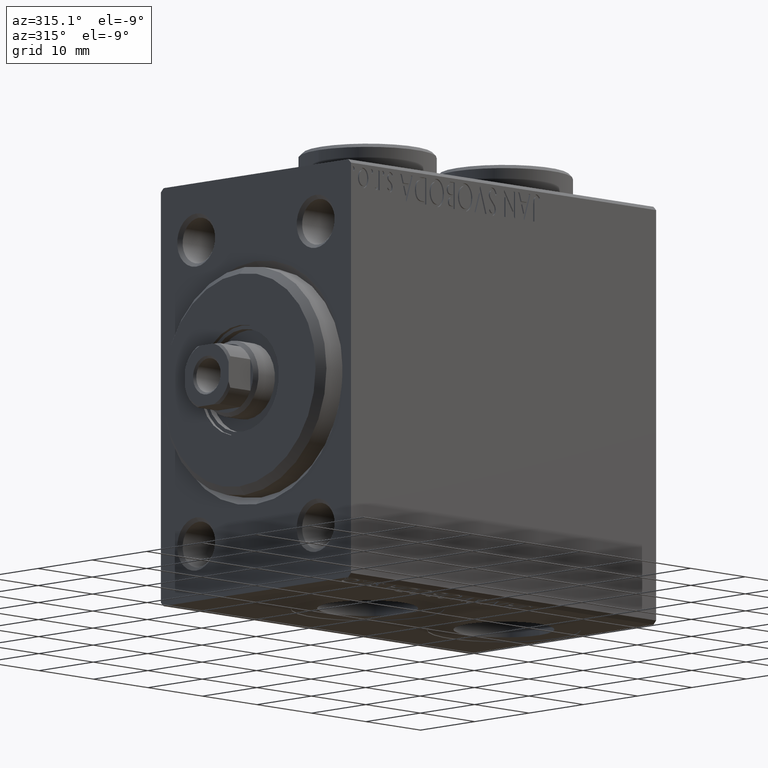
[diagram: clean part render]
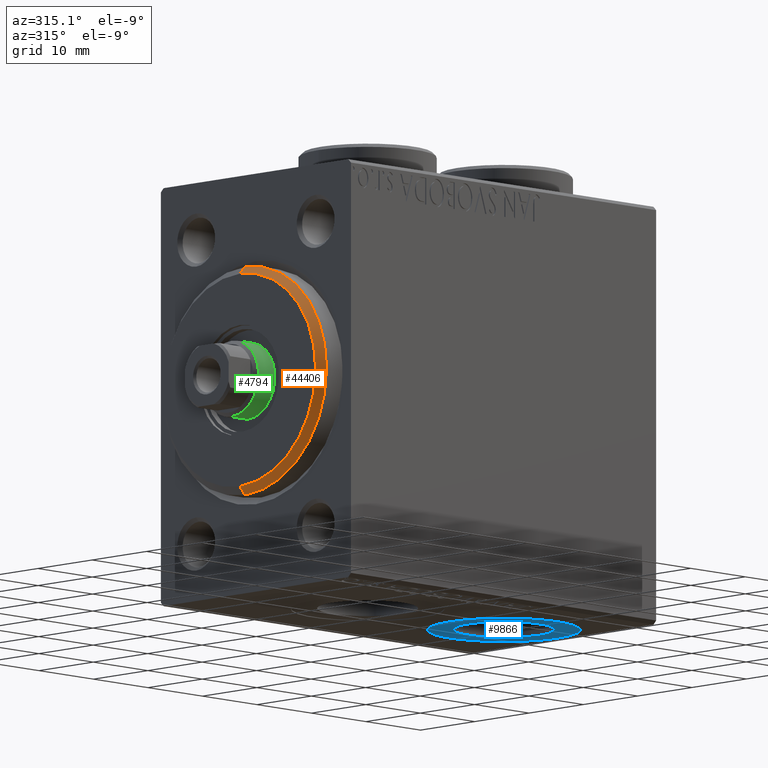
[diagram: same view with three faces highlighted in distinct colors, each labeled with its STEP entity id]
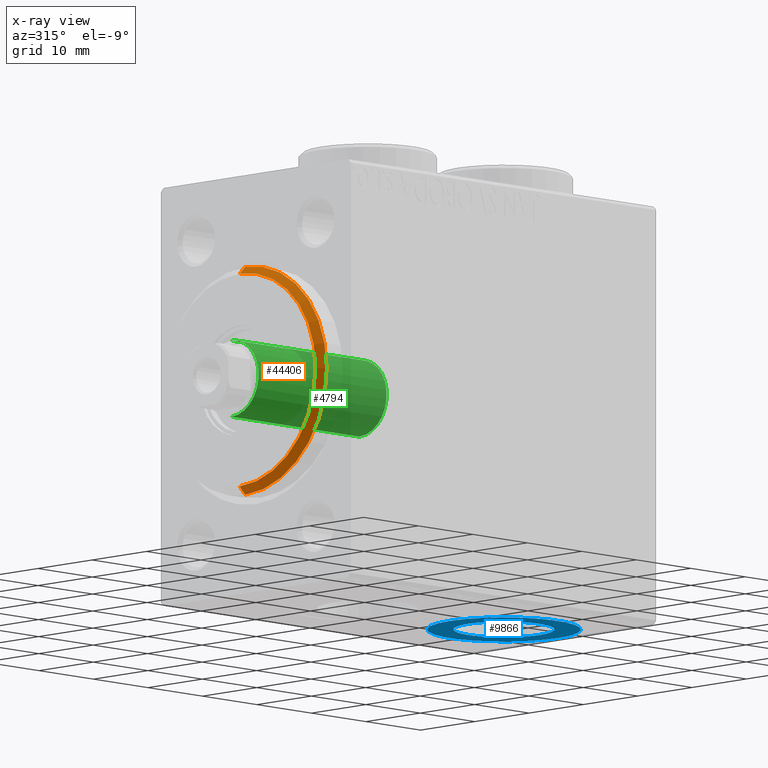
[diagram: x-ray of the same camera — body ghosted, the three highlighted faces saturated]
A machine part, auxiliary view with three faces highlighted in distinct colors.
The next image is the same camera in x-ray (body ghosted, the three faces saturated) — at least one of them is partly hidden behind the body in this view.
Their STEP definitions:

[orange] entity #44406 — the highlighted conical surface has half-angle 45 deg.
#35 = CARTESIAN_POINT ( 'NONE',  ( 3.000000000000000000, 0.000000000000000000, 13.99999999999999645 ) ) ;
#1127 = VERTEX_POINT ( 'NONE', #39941 ) ;
#1784 = CARTESIAN_POINT ( 'NONE',  ( 1.999999999999995781, 0.000000000000000000, 15.00000000000000000 ) ) ;
#2552 = LINE ( 'NONE', #44895, #21576 ) ;
#6516 = DIRECTION ( 'NONE',  ( -1.000000000000000000, 0.000000000000000000, 0.000000000000000000 ) ) ;
#6642 = DIRECTION ( 'NONE',  ( -0.7071067811865482389, 8.659560562354926695E-17, -0.7071067811865469066 ) ) ;
#12354 = CARTESIAN_POINT ( 'NONE',  ( 1.999999999999995781, 1.836970198721029589E-15, -15.00000000000000000 ) ) ;
#12793 = DIRECTION ( 'NONE',  ( 0.000000000000000000, 0.000000000000000000, 1.000000000000000000 ) ) ;
#13194 = VECTOR ( 'NONE', #6642, 999.9999999999998863 ) ;
#13292 = DIRECTION ( 'NONE',  ( 1.000000000000000000, -0.000000000000000000, 0.000000000000000000 ) ) ;
#13510 = EDGE_CURVE ( 'NONE', #1127, #41919, #43146, .T. ) ;
#14566 = ORIENTED_EDGE ( 'NONE', *, *, #13510, .F. ) ;
#16235 = CARTESIAN_POINT ( 'NONE',  ( 3.000000000000000000, 0.000000000000000000, 0.000000000000000000 ) ) ;
#18321 = ORIENTED_EDGE ( 'NONE', *, *, #20078, .T. ) ;
#20078 = EDGE_CURVE ( 'NONE', #1127, #24040, #31932, .T. ) ;
#20143 = FACE_OUTER_BOUND ( 'NONE', #24908, .T. ) ;
#21045 = VERTEX_POINT ( 'NONE', #1784 ) ;
#21576 = VECTOR ( 'NONE', #30165, 999.9999999999998863 ) ;
#23012 = EDGE_CURVE ( 'NONE', #21045, #24040, #38209, .T. ) ;
#23651 = DIRECTION ( 'NONE',  ( 0.000000000000000000, 0.000000000000000000, -1.000000000000000000 ) ) ;
#24040 = VERTEX_POINT ( 'NONE', #12354 ) ;
#24358 = ORIENTED_EDGE ( 'NONE', *, *, #37574, .F. ) ;
#24908 = EDGE_LOOP ( 'NONE', ( #14566, #18321, #29101, #24358 ) ) ;
#26127 = CONICAL_SURFACE ( 'NONE', #28316, 13.99999999999999645, 0.7853981633974473908 ) ;
#28316 = AXIS2_PLACEMENT_3D ( 'NONE', #16235, #30285, #12793 ) ;
#29101 = ORIENTED_EDGE ( 'NONE', *, *, #23012, .F. ) ;
#29902 = AXIS2_PLACEMENT_3D ( 'NONE', #41134, #13292, #23651 ) ;
#30165 = DIRECTION ( 'NONE',  ( -0.7071067811865482389, 0.000000000000000000, 0.7071067811865469066 ) ) ;
#30285 = DIRECTION ( 'NONE',  ( -1.000000000000000000, 0.000000000000000000, 0.000000000000000000 ) ) ;
#31932 = LINE ( 'NONE', #38618, #13194 ) ;
#37574 = EDGE_CURVE ( 'NONE', #41919, #21045, #2552, .T. ) ;
#38209 = CIRCLE ( 'NONE', #41169, 15.00000000000000000 ) ;
#38618 = CARTESIAN_POINT ( 'NONE',  ( 3.000000000000000000, 1.714505518806294244E-15, -13.99999999999999645 ) ) ;
#39941 = CARTESIAN_POINT ( 'NONE',  ( 3.000000000000000000, 1.775737858763662015E-15, -13.99999999999999645 ) ) ;
#41134 = CARTESIAN_POINT ( 'NONE',  ( 3.000000000000000000, 0.000000000000000000, 0.000000000000000000 ) ) ;
#41169 = AXIS2_PLACEMENT_3D ( 'NONE', #44738, #6516, #44960 ) ;
#41919 = VERTEX_POINT ( 'NONE', #35 ) ;
#43146 = CIRCLE ( 'NONE', #29902, 13.99999999999999645 ) ;
#44406 = ADVANCED_FACE ( 'NONE', ( #20143 ), #26127, .T. ) ;
#44738 = CARTESIAN_POINT ( 'NONE',  ( 1.999999999999995781, 0.000000000000000000, 0.000000000000000000 ) ) ;
#44895 = CARTESIAN_POINT ( 'NONE',  ( 3.000000000000000000, 0.000000000000000000, 13.99999999999999645 ) ) ;
#44960 = DIRECTION ( 'NONE',  ( 0.000000000000000000, 0.000000000000000000, -1.000000000000000000 ) ) ;

[blue] entity #9866 — the highlighted planar face has unit normal (0, 0, -1).
#205 = CIRCLE ( 'NONE', #32535, 10.00000000000000178 ) ;
#206 = CARTESIAN_POINT ( 'NONE',  ( 35.50000000000000000, -8.514597242955139663E-15, -27.40000000000000924 ) ) ;
#1246 = CARTESIAN_POINT ( 'NONE',  ( 55.50000000000000000, -7.289950443807786604E-15, -27.40000000000000924 ) ) ;
#2366 = VERTEX_POINT ( 'NONE', #1246 ) ;
#2592 = DIRECTION ( 'NONE',  ( 0.000000000000000000, 0.000000000000000000, -1.000000000000000000 ) ) ;
#3305 = CARTESIAN_POINT ( 'NONE',  ( 45.50000000000000000, -8.514597242955139663E-15, -27.40000000000000924 ) ) ;
#4210 = FACE_BOUND ( 'NONE', #44827, .T. ) ;
#4545 = CIRCLE ( 'NONE', #35399, 6.580000000000002736 ) ;
#6966 = DIRECTION ( 'NONE',  ( -1.000000000000000000, 0.000000000000000000, -0.000000000000000000 ) ) ;
#7486 = AXIS2_PLACEMENT_3D ( 'NONE', #31038, #13782, #45083 ) ;
#7794 = VERTEX_POINT ( 'NONE', #206 ) ;
#8158 = VERTEX_POINT ( 'NONE', #38502 ) ;
#9134 = CARTESIAN_POINT ( 'NONE',  ( 45.50000000000000000, -5.788603209277299718E-15, -27.40000000000000924 ) ) ;
#9827 = DIRECTION ( 'NONE',  ( 0.000000000000000000, 0.000000000000000000, -1.000000000000000000 ) ) ;
#9866 = ADVANCED_FACE ( 'NONE', ( #4210, #14557 ), #42180, .T. ) ;
#9952 = DIRECTION ( 'NONE',  ( -1.000000000000000000, 0.000000000000000000, 0.000000000000000000 ) ) ;
#13068 = ORIENTED_EDGE ( 'NONE', *, *, #34008, .T. ) ;
#13287 = CIRCLE ( 'NONE', #7486, 10.00000000000000178 ) ;
#13782 = DIRECTION ( 'NONE',  ( 0.000000000000000000, 0.000000000000000000, -1.000000000000000000 ) ) ;
#14390 = DIRECTION ( 'NONE',  ( 0.000000000000000000, 0.000000000000000000, -1.000000000000000000 ) ) ;
#14557 = FACE_OUTER_BOUND ( 'NONE', #35891, .T. ) ;
#17159 = CARTESIAN_POINT ( 'NONE',  ( 45.50000000000000000, -8.514597242955139663E-15, -27.40000000000000924 ) ) ;
#17332 = DIRECTION ( 'NONE',  ( 0.000000000000000000, 0.000000000000000000, -1.000000000000000000 ) ) ;
#20890 = CIRCLE ( 'NONE', #30462, 6.580000000000002736 ) ;
#23935 = ORIENTED_EDGE ( 'NONE', *, *, #30050, .F. ) ;
#27323 = EDGE_CURVE ( 'NONE', #7794, #2366, #13287, .T. ) ;
#27976 = ORIENTED_EDGE ( 'NONE', *, *, #39458, .F. ) ;
#30050 = EDGE_CURVE ( 'NONE', #38673, #8158, #4545, .T. ) ;
#30082 = DIRECTION ( 'NONE',  ( -1.000000000000000000, 0.000000000000000000, 0.000000000000000000 ) ) ;
#30462 = AXIS2_PLACEMENT_3D ( 'NONE', #9134, #9827, #30082 ) ;
#30894 = CARTESIAN_POINT ( 'NONE',  ( 45.50000000000000000, -5.788603209277299718E-15, -27.40000000000000924 ) ) ;
#31038 = CARTESIAN_POINT ( 'NONE',  ( 45.50000000000000000, -8.514597242955139663E-15, -27.40000000000000924 ) ) ;
#32388 = CARTESIAN_POINT ( 'NONE',  ( 52.07999999999999829, -4.982785615438341465E-15, -27.40000000000000924 ) ) ;
#32535 = AXIS2_PLACEMENT_3D ( 'NONE', #17159, #14390, #35544 ) ;
#34008 = EDGE_CURVE ( 'NONE', #2366, #7794, #205, .T. ) ;
#35399 = AXIS2_PLACEMENT_3D ( 'NONE', #30894, #2592, #9952 ) ;
#35544 = DIRECTION ( 'NONE',  ( -1.000000000000000000, 0.000000000000000000, 0.000000000000000000 ) ) ;
#35891 = EDGE_LOOP ( 'NONE', ( #40163, #13068 ) ) ;
#38502 = CARTESIAN_POINT ( 'NONE',  ( 38.91999999999999460, -5.788603209277299718E-15, -27.40000000000000924 ) ) ;
#38673 = VERTEX_POINT ( 'NONE', #32388 ) ;
#39458 = EDGE_CURVE ( 'NONE', #8158, #38673, #20890, .T. ) ;
#40163 = ORIENTED_EDGE ( 'NONE', *, *, #27323, .T. ) ;
#42180 = PLANE ( 'NONE',  #44642 ) ;
#44642 = AXIS2_PLACEMENT_3D ( 'NONE', #3305, #17332, #6966 ) ;
#44827 = EDGE_LOOP ( 'NONE', ( #27976, #23935 ) ) ;
#45083 = DIRECTION ( 'NONE',  ( -1.000000000000000000, 0.000000000000000000, 0.000000000000000000 ) ) ;

[green] entity #4794 — the highlighted cylindrical surface (partial cylindrical patch) has radius 5 mm, axis along (1, -0, -0).
#2531 = CARTESIAN_POINT ( 'NONE',  ( -5.000000000000000000, 0.000000000000000000, 32.00000000000000000 ) ) ;
#3282 = CYLINDRICAL_SURFACE ( 'NONE', #17294, 5.000000000000000000 ) ;
#3730 = DIRECTION ( 'NONE',  ( -0.000000000000000000, -0.000000000000000000, -1.000000000000000000 ) ) ;
#4183 = FACE_OUTER_BOUND ( 'NONE', #21874, .T. ) ;
#4794 = ADVANCED_FACE ( 'NONE', ( #4183 ), #3282, .T. ) ;
#5516 = EDGE_CURVE ( 'NONE', #10468, #42200, #29149, .T. ) ;
#7247 = VERTEX_POINT ( 'NONE', #26638 ) ;
#7625 = CARTESIAN_POINT ( 'NONE',  ( 0.000000000000000000, 0.000000000000000000, 56.00000000000000000 ) ) ;
#8930 = AXIS2_PLACEMENT_3D ( 'NONE', #37544, #12925, #13607 ) ;
#10468 = VERTEX_POINT ( 'NONE', #34944 ) ;
#12925 = DIRECTION ( 'NONE',  ( 0.000000000000000000, 0.000000000000000000, 1.000000000000000000 ) ) ;
#13269 = DIRECTION ( 'NONE',  ( 0.000000000000000000, 0.000000000000000000, -1.000000000000000000 ) ) ;
#13607 = DIRECTION ( 'NONE',  ( 1.000000000000000000, 0.000000000000000000, 0.000000000000000000 ) ) ;
#13889 = ORIENTED_EDGE ( 'NONE', *, *, #33807, .T. ) ;
#14603 = LINE ( 'NONE', #42669, #42116 ) ;
#14751 = VERTEX_POINT ( 'NONE', #29081 ) ;
#16025 = DIRECTION ( 'NONE',  ( 1.000000000000000000, 0.000000000000000000, 0.000000000000000000 ) ) ;
#17294 = AXIS2_PLACEMENT_3D ( 'NONE', #7625, #3730, #38699 ) ;
#18318 = DIRECTION ( 'NONE',  ( -0.000000000000000000, -0.000000000000000000, -1.000000000000000000 ) ) ;
#19273 = AXIS2_PLACEMENT_3D ( 'NONE', #40424, #13269, #16025 ) ;
#21874 = EDGE_LOOP ( 'NONE', ( #35967, #13889, #37357, #23642 ) ) ;
#23642 = ORIENTED_EDGE ( 'NONE', *, *, #30702, .T. ) ;
#23907 = VECTOR ( 'NONE', #18318, 1000.000000000000000 ) ;
#26638 = CARTESIAN_POINT ( 'NONE',  ( 5.000000000000000000, 6.123233995736766282E-16, 55.50000000000001421 ) ) ;
#29081 = CARTESIAN_POINT ( 'NONE',  ( 5.000000000000000000, 6.123233995736766282E-16, 32.00000000000000000 ) ) ;
#29149 = LINE ( 'NONE', #43193, #23907 ) ;
#29326 = DIRECTION ( 'NONE',  ( -0.000000000000000000, -0.000000000000000000, -1.000000000000000000 ) ) ;
#30702 = EDGE_CURVE ( 'NONE', #42200, #14751, #38336, .T. ) ;
#33807 = EDGE_CURVE ( 'NONE', #7247, #10468, #39893, .T. ) ;
#34944 = CARTESIAN_POINT ( 'NONE',  ( -5.000000000000000000, 0.000000000000000000, 55.50000000000001421 ) ) ;
#35454 = EDGE_CURVE ( 'NONE', #7247, #14751, #14603, .T. ) ;
#35967 = ORIENTED_EDGE ( 'NONE', *, *, #35454, .F. ) ;
#37357 = ORIENTED_EDGE ( 'NONE', *, *, #5516, .T. ) ;
#37544 = CARTESIAN_POINT ( 'NONE',  ( 0.000000000000000000, 0.000000000000000000, 32.00000000000000000 ) ) ;
#38336 = CIRCLE ( 'NONE', #8930, 5.000000000000000000 ) ;
#38699 = DIRECTION ( 'NONE',  ( -1.000000000000000000, 0.000000000000000000, 0.000000000000000000 ) ) ;
#39893 = CIRCLE ( 'NONE', #19273, 5.000000000000000000 ) ;
#40424 = CARTESIAN_POINT ( 'NONE',  ( 0.000000000000000000, 0.000000000000000000, 55.50000000000001421 ) ) ;
#42116 = VECTOR ( 'NONE', #29326, 1000.000000000000000 ) ;
#42200 = VERTEX_POINT ( 'NONE', #2531 ) ;
#42669 = CARTESIAN_POINT ( 'NONE',  ( 5.000000000000000000, 6.123233995736766282E-16, 56.00000000000000000 ) ) ;
#43193 = CARTESIAN_POINT ( 'NONE',  ( -5.000000000000000000, 0.000000000000000000, 56.00000000000000000 ) ) ;